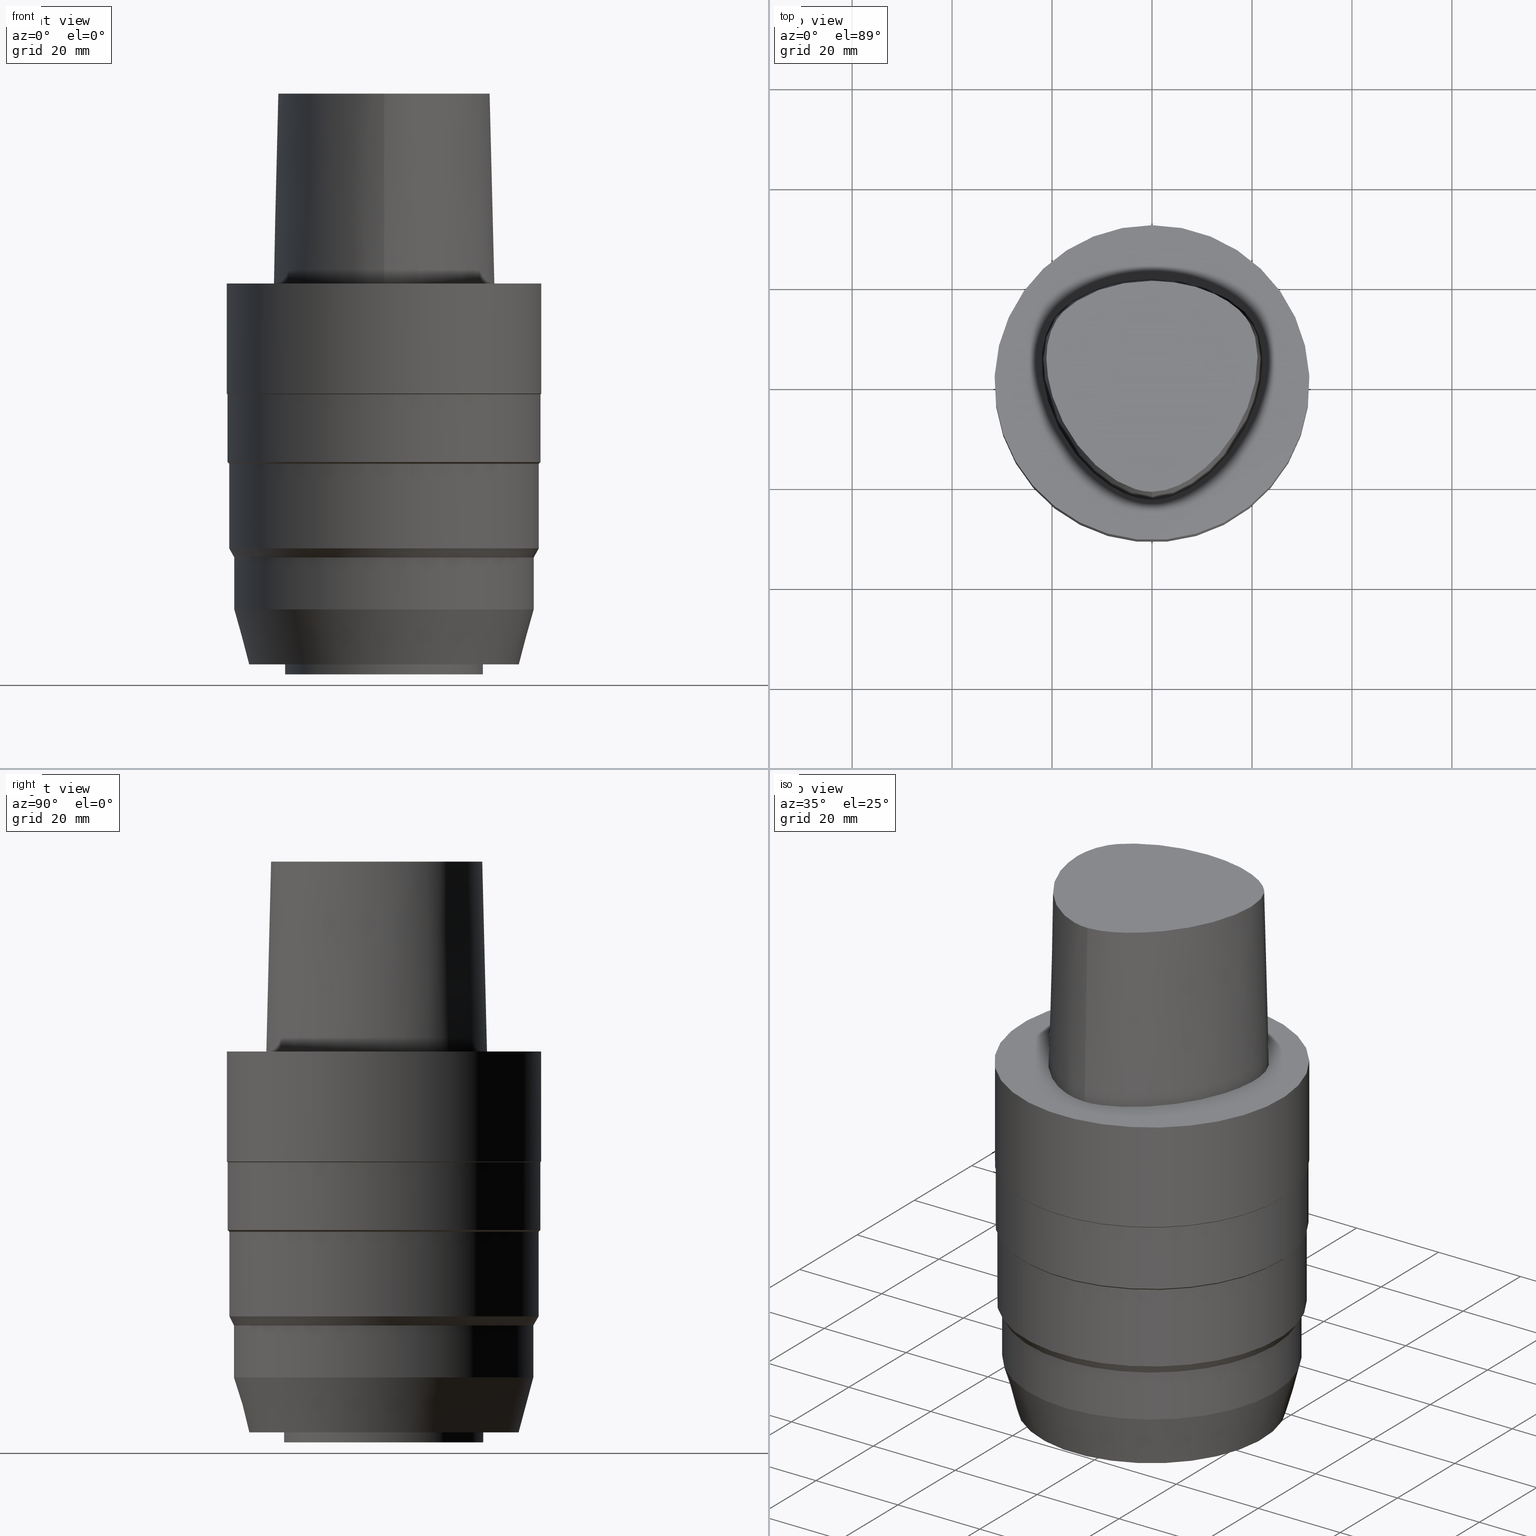
[diagram: canonical four-view strip — front | top / right | iso, engineering-drawing reading convention]
A machine part, canonical four-view strip (front | top / right | iso — engineering-drawing reading convention). The complete STEP part file that produces these views, byte-faithful:
ISO-10303-21;
HEADER;
FILE_DESCRIPTION((''),'1');
FILE_NAME('V:/90_\X2\53D65F9730C730FC30BF\X0\/00_\X2\6DE18DEF30C730FC30BF\X0\/ALL/CAPTO-BKUS\X2\52A05DE556F3\X0\_201801/C6-MEGADS-A/C6-MEGA1.000DS-3A.stp','2018-02-01T09:11:41',(''),(''),'Spatial Interop R21 SP3','Kubotek KeyCreator 2011 V10.0.2 (22737)',' ');
FILE_SCHEMA(('automotive_design'));
ENDSEC;
DATA;
#1=MECHANICAL_DESIGN_GEOMETRIC_PRESENTATION_REPRESENTATION(' ',(#10,#11,#12,#13,#14,#15,#16,#17,#18,#19,#20,#21,#22,#23,#24,#25,#26,#27,#28,#29,#30,#31,#32,#33,#34,#35,#36,#37,#38,#39,#40,#41,#42,#43,#44,#45),#6);
#2=PRODUCT_DEFINITION_CONTEXT('',#46,'design');
#3=APPLICATION_PROTOCOL_DEFINITION('INTERNATIONAL STANDARD','automotive_design',1994,#46);
#4=PRODUCT_CATEGORY_RELATIONSHIP('NONE','NONE',#47,#48);
#5=SHAPE_DEFINITION_REPRESENTATION(#49,#50);
#6= (GEOMETRIC_REPRESENTATION_CONTEXT(3)GLOBAL_UNCERTAINTY_ASSIGNED_CONTEXT((#53))GLOBAL_UNIT_ASSIGNED_CONTEXT((#55,#56,#57))REPRESENTATION_CONTEXT('NONE','WORKSPACE'));
#10=STYLED_ITEM('',(#59),#60);
#11=STYLED_ITEM('',(#61,#62),#63);
#12=STYLED_ITEM('',(#64),#65);
#13=STYLED_ITEM('',(#66,#67),#68);
#14=STYLED_ITEM('',(#69,#70),#71);
#15=STYLED_ITEM('',(#72,#73),#74);
#16=STYLED_ITEM('',(#75,#76),#77);
#17=STYLED_ITEM('',(#78,#79),#80);
#18=STYLED_ITEM('',(#81),#82);
#19=STYLED_ITEM('',(#83),#84);
#20=STYLED_ITEM('',(#85),#86);
#21=STYLED_ITEM('',(#87,#88),#89);
#22=STYLED_ITEM('',(#90),#91);
#23=STYLED_ITEM('',(#92),#93);
#24=STYLED_ITEM('',(#94,#95),#96);
#25=STYLED_ITEM('',(#97),#98);
#26=STYLED_ITEM('',(#99),#100);
#27=STYLED_ITEM('',(#101),#102);
#28=STYLED_ITEM('',(#103,#104),#105);
#29=STYLED_ITEM('',(#106,#107),#108);
#30=STYLED_ITEM('',(#109),#110);
#31=STYLED_ITEM('',(#111,#112),#113);
#32=STYLED_ITEM('',(#114,#115),#116);
#33=STYLED_ITEM('',(#117),#118);
#34=STYLED_ITEM('',(#119),#120);
#35=STYLED_ITEM('',(#121),#122);
#36=STYLED_ITEM('',(#123,#124),#125);
#37=STYLED_ITEM('',(#126,#127),#128);
#38=STYLED_ITEM('',(#129),#130);
#39=STYLED_ITEM('',(#131,#132),#133);
#40=STYLED_ITEM('',(#134),#135);
#41=STYLED_ITEM('',(#136),#137);
#42=STYLED_ITEM('',(#138,#139),#140);
#43=STYLED_ITEM('',(#141,#142),#143);
#44=STYLED_ITEM('',(#144),#145);
#45=STYLED_ITEM('',(#146),#147);
#46=APPLICATION_CONTEXT(' ');
#47=PRODUCT_CATEGORY('part','NONE');
#48=PRODUCT_RELATED_PRODUCT_CATEGORY('detail',' ',(#148));
#49=PRODUCT_DEFINITION_SHAPE('NONE','NONE',#149);
#50=ADVANCED_BREP_SHAPE_REPRESENTATION('Unnamed[1]',(#89,#150),#6);
#53=UNCERTAINTY_MEASURE_WITH_UNIT(LENGTH_MEASURE(1.0E-006),#55,'','');
#55= (CONVERSION_BASED_UNIT('MILLIMETRE',#153)LENGTH_UNIT()NAMED_UNIT(#156));
#56= (NAMED_UNIT(#158)PLANE_ANGLE_UNIT()SI_UNIT($,.RADIAN.));
#57= (NAMED_UNIT(#158)SOLID_ANGLE_UNIT()SI_UNIT($,.STERADIAN.));
#59=PRESENTATION_STYLE_ASSIGNMENT((#164));
#60=EDGE_CURVE('Unnamed[1]',#165,#165,#166,.T.);
#61=PRESENTATION_STYLE_ASSIGNMENT((#167));
#62=PRESENTATION_STYLE_ASSIGNMENT((#168));
#63=ADVANCED_FACE('Unnamed[1]',(#169,#170),#171,.T.);
#64=PRESENTATION_STYLE_ASSIGNMENT((#172));
#65=EDGE_CURVE('Unnamed[1]',#173,#174,#175,.T.);
#66=PRESENTATION_STYLE_ASSIGNMENT((#176));
#67=PRESENTATION_STYLE_ASSIGNMENT((#177));
#68=ADVANCED_FACE('Unnamed[1]',(#178),#179,.T.);
#69=PRESENTATION_STYLE_ASSIGNMENT((#180));
#70=PRESENTATION_STYLE_ASSIGNMENT((#181));
#71=ADVANCED_FACE('Unnamed[1]',(#182,#183),#184,.T.);
#72=PRESENTATION_STYLE_ASSIGNMENT((#185));
#73=PRESENTATION_STYLE_ASSIGNMENT((#186));
#74=ADVANCED_FACE('Unnamed[1]',(#187,#188),#189,.T.);
#75=PRESENTATION_STYLE_ASSIGNMENT((#190));
#76=PRESENTATION_STYLE_ASSIGNMENT((#191));
#77=ADVANCED_FACE('Unnamed[1]',(#192,#193),#194,.T.);
#78=PRESENTATION_STYLE_ASSIGNMENT((#195));
#79=PRESENTATION_STYLE_ASSIGNMENT((#196));
#80=ADVANCED_FACE('Unnamed[1]',(#197,#198),#199,.T.);
#81=PRESENTATION_STYLE_ASSIGNMENT((#200));
#82=EDGE_CURVE('Unnamed[1]',#173,#201,#202,.T.);
#83=PRESENTATION_STYLE_ASSIGNMENT((#203));
#84=EDGE_CURVE('Unnamed[1]',#204,#204,#205,.T.);
#85=PRESENTATION_STYLE_ASSIGNMENT((#206));
#86=EDGE_CURVE('Unnamed[1]',#207,#207,#208,.T.);
#87=PRESENTATION_STYLE_ASSIGNMENT((#209));
#88=PRESENTATION_STYLE_ASSIGNMENT((#210));
#89=MANIFOLD_SOLID_BREP('Unnamed[1]',#211);
#90=PRESENTATION_STYLE_ASSIGNMENT((#212));
#91=EDGE_CURVE('Unnamed[1]',#174,#213,#214,.T.);
#92=PRESENTATION_STYLE_ASSIGNMENT((#215));
#93=EDGE_CURVE('Unnamed[1]',#216,#216,#217,.T.);
#94=PRESENTATION_STYLE_ASSIGNMENT((#218));
#95=PRESENTATION_STYLE_ASSIGNMENT((#219));
#96=ADVANCED_FACE('Unnamed[1]',(#220),#221,.T.);
#97=PRESENTATION_STYLE_ASSIGNMENT((#222));
#98=EDGE_CURVE('Unnamed[1]',#223,#173,#224,.T.);
#99=PRESENTATION_STYLE_ASSIGNMENT((#225));
#100=EDGE_CURVE('Unnamed[1]',#226,#226,#227,.T.);
#101=PRESENTATION_STYLE_ASSIGNMENT((#228));
#102=EDGE_CURVE('Unnamed[1]',#229,#229,#230,.T.);
#103=PRESENTATION_STYLE_ASSIGNMENT((#231));
#104=PRESENTATION_STYLE_ASSIGNMENT((#232));
#105=ADVANCED_FACE('Unnamed[1]',(#233,#234),#235,.T.);
#106=PRESENTATION_STYLE_ASSIGNMENT((#236));
#107=PRESENTATION_STYLE_ASSIGNMENT((#237));
#108=ADVANCED_FACE('Unnamed[1]',(#238,#239),#240,.T.);
#109=PRESENTATION_STYLE_ASSIGNMENT((#241));
#110=EDGE_CURVE('Unnamed[1]',#242,#242,#243,.T.);
#111=PRESENTATION_STYLE_ASSIGNMENT((#244));
#112=PRESENTATION_STYLE_ASSIGNMENT((#245));
#113=ADVANCED_FACE('Unnamed[1]',(#246,#247),#248,.T.);
#114=PRESENTATION_STYLE_ASSIGNMENT((#249));
#115=PRESENTATION_STYLE_ASSIGNMENT((#250));
#116=ADVANCED_FACE('Unnamed[1]',(#251,#252),#253,.T.);
#117=PRESENTATION_STYLE_ASSIGNMENT((#254));
#118=EDGE_CURVE('Unnamed[1]',#255,#255,#256,.T.);
#119=PRESENTATION_STYLE_ASSIGNMENT((#257));
#120=EDGE_CURVE('Unnamed[1]',#201,#174,#258,.T.);
#121=PRESENTATION_STYLE_ASSIGNMENT((#259));
#122=EDGE_CURVE('Unnamed[1]',#213,#201,#260,.T.);
#123=PRESENTATION_STYLE_ASSIGNMENT((#261));
#124=PRESENTATION_STYLE_ASSIGNMENT((#262));
#125=ADVANCED_FACE('Unnamed[1]',(#263),#264,.T.);
#126=PRESENTATION_STYLE_ASSIGNMENT((#265));
#127=PRESENTATION_STYLE_ASSIGNMENT((#266));
#128=ADVANCED_FACE('Unnamed[1]',(#267,#268),#269,.T.);
#129=PRESENTATION_STYLE_ASSIGNMENT((#270));
#130=EDGE_CURVE('Unnamed[1]',#271,#271,#272,.T.);
#131=PRESENTATION_STYLE_ASSIGNMENT((#273));
#132=PRESENTATION_STYLE_ASSIGNMENT((#274));
#133=ADVANCED_FACE('Unnamed[1]',(#275,#276),#277,.T.);
#134=PRESENTATION_STYLE_ASSIGNMENT((#278));
#135=EDGE_CURVE('Unnamed[1]',#173,#223,#279,.T.);
#136=PRESENTATION_STYLE_ASSIGNMENT((#280));
#137=EDGE_CURVE('Unnamed[1]',#281,#281,#282,.T.);
#138=PRESENTATION_STYLE_ASSIGNMENT((#283));
#139=PRESENTATION_STYLE_ASSIGNMENT((#284));
#140=ADVANCED_FACE('Unnamed[1]',(#285),#286,.T.);
#141=PRESENTATION_STYLE_ASSIGNMENT((#287));
#142=PRESENTATION_STYLE_ASSIGNMENT((#288));
#143=ADVANCED_FACE('Unnamed[1]',(#289),#290,.T.);
#144=PRESENTATION_STYLE_ASSIGNMENT((#291));
#145=EDGE_CURVE('Unnamed[1]',#223,#213,#292,.T.);
#146=PRESENTATION_STYLE_ASSIGNMENT((#293));
#147=EDGE_CURVE('Unnamed[1]',#294,#294,#295,.T.);
#148=PRODUCT('Unnamed[1]','Unnamed[1]','PART-Unnamed[1]-DESC',(#296));
#149=PRODUCT_DEFINITION('NONE','NONE',#297,#2);
#150=AXIS2_PLACEMENT_3D('',#298,#299,#300);
#153=LENGTH_MEASURE_WITH_UNIT(LENGTH_MEASURE(1.0),#301);
#156=DIMENSIONAL_EXPONENTS(1.0,0.0,0.0,0.0,0.0,0.0,0.0);
#158=DIMENSIONAL_EXPONENTS(0.0,0.0,0.0,0.0,0.0,0.0,0.0);
#164=CURVE_STYLE('',#302,POSITIVE_LENGTH_MEASURE(1000.0),#303);
#165=VERTEX_POINT('',#304);
#166=CIRCLE('',#305,31.5);
#167=SURFACE_STYLE_USAGE(.BOTH.,#306);
#168=CURVE_STYLE('',#307,POSITIVE_LENGTH_MEASURE(1000.0),#308);
#169=FACE_BOUND('',#309,.T.);
#170=FACE_BOUND('',#310,.T.);
#171=CONICAL_SURFACE('',#311,28.4750000000001,0.261799387799166);
#172=CURVE_STYLE('',#312,POSITIVE_LENGTH_MEASURE(1000.0),#313);
#173=VERTEX_POINT('',#314);
#174=VERTEX_POINT('',#315);
#175=LINE('',#316,#317);
#176=SURFACE_STYLE_USAGE(.BOTH.,#318);
#177=CURVE_STYLE('',#319,POSITIVE_LENGTH_MEASURE(1000.0),#320);
#178=FACE_OUTER_BOUND('',#321,.T.);
#179=B_SPLINE_SURFACE_WITH_KNOTS('',3,3,((#322,#323,#324,#325),(#326,#327,#328,#329),(#330,#331,#332,#333),(#334,#335,#336,#337),(#338,#339,#340,#341),(#342,#343,#344,#345),(#346,#347,#348,#349),(#350,#351,#352,#353),(#354,#355,#356,#357),(#358,#359,#360,#361),(#362,#363,#364,#365),(#366,#367,#368,#369),(#370,#371,#372,#373),(#374,#375,#376,#377),(#378,#379,#380,#381),(#382,#383,#384,#385),(#386,#387,#388,#389),(#390,#391,#392,#393)),.UNSPECIFIED.,.F.,.F.,.F.,(4,1,1,1,1,1,1,1,1,2,1,1,1,1,4),(4,4),(-6.6151339308743,-6.20168806019465,-5.78824218951501,-5.37479631883537,-4.96135044815572,-4.13445870679644,-3.30756696543715,-2.89412109475751,-2.48067522407786,-2.06722935339822,-1.65378348271857,-1.24033761203893,-0.826891741359287,-0.413445870679644,0.0),(-3.8,0.0),.UNSPECIFIED.);
#180=SURFACE_STYLE_USAGE(.BOTH.,#394);
#181=CURVE_STYLE('',#395,POSITIVE_LENGTH_MEASURE(1000.0),#396);
#182=FACE_BOUND('',#397,.T.);
#183=FACE_BOUND('',#398,.T.);
#184=CONICAL_SURFACE('',#399,30.475,0.523598775596922);
#185=SURFACE_STYLE_USAGE(.BOTH.,#400);
#186=CURVE_STYLE('',#401,POSITIVE_LENGTH_MEASURE(1000.0),#402);
#187=FACE_BOUND('',#403,.T.);
#188=FACE_BOUND('',#404,.T.);
#189=CYLINDRICAL_SURFACE('',#405,31.5);
#190=SURFACE_STYLE_USAGE(.BOTH.,#406);
#191=CURVE_STYLE('',#407,POSITIVE_LENGTH_MEASURE(1000.0),#408);
#192=FACE_BOUND('',#409,.T.);
#193=FACE_OUTER_BOUND('',#410,.T.);
#194=PLANE('',#411);
#195=SURFACE_STYLE_USAGE(.BOTH.,#412);
#196=CURVE_STYLE('',#413,POSITIVE_LENGTH_MEASURE(1000.0),#414);
#197=FACE_BOUND('',#415,.T.);
#198=FACE_BOUND('',#416,.T.);
#199=CYLINDRICAL_SURFACE('',#417,19.9200000000011);
#200=CURVE_STYLE('',#418,POSITIVE_LENGTH_MEASURE(1000.0),#419);
#201=VERTEX_POINT('',#420);
#202=LINE('',#421,#422);
#203=CURVE_STYLE('',#423,POSITIVE_LENGTH_MEASURE(1000.0),#424);
#204=VERTEX_POINT('',#425);
#205=CIRCLE('',#426,31.5);
#206=CURVE_STYLE('',#427,POSITIVE_LENGTH_MEASURE(1000.0),#428);
#207=VERTEX_POINT('',#429);
#208=CIRCLE('',#430,31.0000000000001);
#209=SURFACE_STYLE_USAGE(.BOTH.,#431);
#210=CURVE_STYLE('',#432,POSITIVE_LENGTH_MEASURE(1000.0),#433);
#211=CLOSED_SHELL('',(#96,#68,#140,#143,#105,#74,#113,#116,#128,#108,#71,#133,#63,#77,#80,#125));
#212=CURVE_STYLE('',#434,POSITIVE_LENGTH_MEASURE(1000.0),#435);
#213=VERTEX_POINT('',#436);
#214=B_SPLINE_CURVE_WITH_KNOTS('',3,(#437,#438,#439,#440,#441,#442,#443,#444,#445,#446,#447,#448,#449,#450,#451,#452,#453),.UNSPECIFIED.,.F.,.F.,(4,1,1,1,1,1,1,1,1,1,1,1,1,1,4),(-13.2302678617486,-12.816821991069,-12.4033761203893,-11.9899302497097,-11.57648437903,-11.1630385083504,-10.9563155730106,-10.7495926376707,-10.3361467669911,-9.92270089631145,-9.09580915495216,-8.26891741359287,-7.44202567223358,-7.02857980155394,-6.6151339308743),.UNSPECIFIED.);
#215=CURVE_STYLE('',#454,POSITIVE_LENGTH_MEASURE(1000.0),#455);
#216=VERTEX_POINT('',#456);
#217=CIRCLE('',#457,31.3499999999998);
#218=SURFACE_STYLE_USAGE(.BOTH.,#458);
#219=CURVE_STYLE('',#459,POSITIVE_LENGTH_MEASURE(1000.0),#460);
#220=FACE_OUTER_BOUND('',#461,.T.);
#221=B_SPLINE_SURFACE_WITH_KNOTS('',3,3,((#462,#463,#464,#465),(#466,#467,#468,#469),(#470,#471,#472,#473),(#474,#475,#476,#477),(#478,#479,#480,#481),(#482,#483,#484,#485),(#486,#487,#488,#489),(#490,#491,#492,#493),(#494,#495,#496,#497),(#498,#499,#500,#501),(#502,#503,#504,#505),(#506,#507,#508,#509),(#510,#511,#512,#513),(#514,#515,#516,#517),(#518,#519,#520,#521),(#522,#523,#524,#525),(#526,#527,#528,#529)),.UNSPECIFIED.,.F.,.F.,.F.,(4,1,1,1,1,1,1,1,1,1,1,1,1,1,4),(4,4),(-13.2302678617486,-12.816821991069,-12.4033761203893,-11.9899302497097,-11.57648437903,-11.1630385083504,-10.9563155730106,-10.7495926376707,-10.3361467669911,-9.92270089631145,-9.09580915495216,-8.26891741359287,-7.44202567223358,-7.02857980155394,-6.6151339308743),(-3.8,0.0),.UNSPECIFIED.);
#222=CURVE_STYLE('',#530,POSITIVE_LENGTH_MEASURE(1000.0),#531);
#223=VERTEX_POINT('',#532);
#224=B_SPLINE_CURVE_WITH_KNOTS('',3,(#533,#534,#535,#536,#537,#538,#539,#540,#541,#542,#543,#544,#545,#546,#547,#548),.UNSPECIFIED.,.F.,.F.,(4,1,1,1,1,1,1,1,1,1,1,1,1,4),(6.61513393087476,6.99917207152274,7.48193246986995,7.96289324787093,8.45540287038584,9.10291653679981,9.67129810936083,10.1618749681153,10.6358867802489,11.1080734988593,11.6043706019633,12.09451993853,12.6985979284494,13.2302678617486),.UNSPECIFIED.);
#225=CURVE_STYLE('',#549,POSITIVE_LENGTH_MEASURE(1000.0),#550);
#226=VERTEX_POINT('',#551);
#227=CIRCLE('',#552,31.3500000000002);
#228=CURVE_STYLE('',#553,POSITIVE_LENGTH_MEASURE(1000.0),#554);
#229=VERTEX_POINT('',#555);
#230=CIRCLE('',#556,29.9499999999999);
#231=SURFACE_STYLE_USAGE(.BOTH.,#557);
#232=CURVE_STYLE('',#558,POSITIVE_LENGTH_MEASURE(1000.0),#559);
#233=FACE_BOUND('',#560,.T.);
#234=FACE_OUTER_BOUND('',#561,.T.);
#235=PLANE('',#562);
#236=SURFACE_STYLE_USAGE(.BOTH.,#563);
#237=CURVE_STYLE('',#564,POSITIVE_LENGTH_MEASURE(1000.0),#565);
#238=FACE_BOUND('',#566,.T.);
#239=FACE_BOUND('',#567,.T.);
#240=CYLINDRICAL_SURFACE('',#568,31.0);
#241=CURVE_STYLE('',#569,POSITIVE_LENGTH_MEASURE(1000.0),#570);
#242=VERTEX_POINT('',#571);
#243=CIRCLE('',#572,19.9200000000013);
#244=SURFACE_STYLE_USAGE(.BOTH.,#573);
#245=CURVE_STYLE('',#574,POSITIVE_LENGTH_MEASURE(1000.0),#575);
#246=FACE_BOUND('',#576,.T.);
#247=FACE_BOUND('',#577,.T.);
#248=CONICAL_SURFACE('',#578,31.4249999999999,0.785398163397756);
#249=SURFACE_STYLE_USAGE(.BOTH.,#579);
#250=CURVE_STYLE('',#580,POSITIVE_LENGTH_MEASURE(1000.0),#581);
#251=FACE_BOUND('',#582,.T.);
#252=FACE_BOUND('',#583,.T.);
#253=CYLINDRICAL_SURFACE('',#584,31.35);
#254=CURVE_STYLE('',#585,POSITIVE_LENGTH_MEASURE(1000.0),#586);
#255=VERTEX_POINT('',#587);
#256=CIRCLE('',#588,31.0);
#257=CURVE_STYLE('',#589,POSITIVE_LENGTH_MEASURE(1000.0),#590);
#258=CIRCLE('',#591,0.949936168436318);
#259=CURVE_STYLE('',#592,POSITIVE_LENGTH_MEASURE(1000.0),#593);
#260=B_SPLINE_CURVE_WITH_KNOTS('',3,(#594,#595,#596,#597,#598,#599,#600,#601,#602,#603,#604,#605,#606,#607,#608,#609,#610,#611),.UNSPECIFIED.,.F.,.F.,(4,1,1,1,1,1,1,1,1,2,1,1,1,1,4),(-6.6151339308743,-6.20168806019465,-5.78824218951501,-5.37479631883537,-4.96135044815572,-4.13445870679644,-3.30756696543715,-2.89412109475751,-2.48067522407786,-2.06722935339822,-1.65378348271857,-1.24033761203893,-0.826891741359287,-0.413445870679644,0.0),.UNSPECIFIED.);
#261=SURFACE_STYLE_USAGE(.BOTH.,#612);
#262=CURVE_STYLE('',#613,POSITIVE_LENGTH_MEASURE(1000.0),#614);
#263=FACE_OUTER_BOUND('',#615,.T.);
#264=PLANE('',#616);
#265=SURFACE_STYLE_USAGE(.BOTH.,#617);
#266=CURVE_STYLE('',#618,POSITIVE_LENGTH_MEASURE(1000.0),#619);
#267=FACE_BOUND('',#620,.T.);
#268=FACE_BOUND('',#621,.T.);
#269=CONICAL_SURFACE('',#622,31.1750000000001,0.785398163406234);
#270=CURVE_STYLE('',#623,POSITIVE_LENGTH_MEASURE(1000.0),#624);
#271=VERTEX_POINT('',#625);
#272=CIRCLE('',#626,29.9500000000003);
#273=SURFACE_STYLE_USAGE(.BOTH.,#627);
#274=CURVE_STYLE('',#628,POSITIVE_LENGTH_MEASURE(1000.0),#629);
#275=FACE_BOUND('',#630,.T.);
#276=FACE_BOUND('',#631,.T.);
#277=CYLINDRICAL_SURFACE('',#632,29.9500000000001);
#278=CURVE_STYLE('',#633,POSITIVE_LENGTH_MEASURE(1000.0),#634);
#279=B_SPLINE_CURVE_WITH_KNOTS('',3,(#635,#636,#637,#638,#639,#640,#641,#642,#643,#644,#645,#646,#647,#648,#649,#650),.UNSPECIFIED.,.F.,.F.,(4,1,1,1,1,1,1,1,1,1,1,1,1,4),(0.0,0.447924670568964,0.9388024242536,1.50591409090711,2.07314340012323,2.72424957442464,3.2253501842849,3.80982102049476,4.34867996267067,4.85900173381144,5.37972031856977,6.03459825488646,6.61113557741484,6.61513393087395),.UNSPECIFIED.);
#280=CURVE_STYLE('',#651,POSITIVE_LENGTH_MEASURE(1000.0),#652);
#281=VERTEX_POINT('',#653);
#282=CIRCLE('',#654,19.9200000000008);
#283=SURFACE_STYLE_USAGE(.BOTH.,#655);
#284=CURVE_STYLE('',#656,POSITIVE_LENGTH_MEASURE(1000.0),#657);
#285=FACE_OUTER_BOUND('',#658,.T.);
#286=CONICAL_SURFACE('',#659,1.0,0.0249931148600041);
#287=SURFACE_STYLE_USAGE(.BOTH.,#660);
#288=CURVE_STYLE('',#661,POSITIVE_LENGTH_MEASURE(1000.0),#662);
#289=FACE_OUTER_BOUND('',#663,.T.);
#290=PLANE('',#664);
#291=CURVE_STYLE('',#665,POSITIVE_LENGTH_MEASURE(1000.0),#666);
#292=LINE('',#667,#668);
#293=CURVE_STYLE('',#669,POSITIVE_LENGTH_MEASURE(1000.0),#670);
#294=VERTEX_POINT('',#671);
#295=CIRCLE('',#672,26.9999999999999);
#296=PRODUCT_CONTEXT('',#46,'mechanical');
#297=PRODUCT_DEFINITION_FORMATION_WITH_SPECIFIED_SOURCE(' ','NONE',#148,.NOT_KNOWN.);
#298=CARTESIAN_POINT('',(0.0,0.0,0.0));
#299=DIRECTION('',(0.0,0.0,1.0));
#300=DIRECTION('',(1.0,0.0,0.0));
#301= (NAMED_UNIT(#156)LENGTH_UNIT()SI_UNIT(.MILLI.,.METRE.));
#302=DRAUGHTING_PRE_DEFINED_CURVE_FONT('continuous');
#303=COLOUR_RGB('',0.0,1.0,0.0);
#304=CARTESIAN_POINT('',(-3.88267476788467E-031,31.5,3.85763741731416E-015));
#305=AXIS2_PLACEMENT_3D('',#674,#675,#676);
#306=SURFACE_SIDE_STYLE('',(#677));
#307=DRAUGHTING_PRE_DEFINED_CURVE_FONT('continuous');
#308=COLOUR_RGB('',0.0,1.0,0.0);
#309=EDGE_LOOP('',(#678));
#310=EDGE_LOOP('',(#679));
#311=AXIS2_PLACEMENT_3D('',#680,#681,#682);
#312=DRAUGHTING_PRE_DEFINED_CURVE_FONT('continuous');
#313=COLOUR_RGB('',0.0,1.0,0.0);
#314=CARTESIAN_POINT('',(-0.001218547003662,19.7276821925089,38.0));
#315=CARTESIAN_POINT('',(0.044682985379347,20.6765087343109,1.61778115328528E-031));
#316=CARTESIAN_POINT('',(-0.001218547003662,19.7276821925089,38.0));
#317=VECTOR('',#683,38.0118715503078);
#318=SURFACE_SIDE_STYLE('',(#684));
#319=DRAUGHTING_PRE_DEFINED_CURVE_FONT('continuous');
#320=COLOUR_RGB('',0.0,1.0,0.0);
#321=EDGE_LOOP('',(#685,#686,#687,#688));
#322=CARTESIAN_POINT('',(0.038736923393866,-22.5191997536361,38.0));
#323=CARTESIAN_POINT('',(0.04035580478973,-22.8358410047159,25.3333333333066));
#324=CARTESIAN_POINT('',(0.041974686185626,-23.1524822558133,12.6666666666934));
#325=CARTESIAN_POINT('',(0.04359356758149,-23.4691235068931,7.78075697532443E-032));
#326=CARTESIAN_POINT('',(-1.33786123484754,-22.5261650259856,38.0));
#327=CARTESIAN_POINT('',(-1.38240731367927,-22.8430399310626,25.3333333333066));
#328=CARTESIAN_POINT('',(-1.42695339249092,-23.1599147815484,12.6666666666934));
#329=CARTESIAN_POINT('',(-1.4714994713963,-23.4767895315797,2.46519032881566E-032));
#330=CARTESIAN_POINT('',(-4.08909358431842,-21.9268839879558,38.0));
#331=CARTESIAN_POINT('',(-4.20580731135515,-22.2249725500078,25.3333333333066));
#332=CARTESIAN_POINT('',(-4.32252104640446,-22.5230611651922,12.6666666666934));
#333=CARTESIAN_POINT('',(-4.43923476371401,-22.821149804767,-4.93038065763132E-032));
#334=CARTESIAN_POINT('',(-7.8333083619947,-19.9973514861616,38.0));
#335=CARTESIAN_POINT('',(-8.00568301809614,-20.2649260859405,25.3333333333066));
#336=CARTESIAN_POINT('',(-8.1780576640789,-20.532500564315,12.6666666666934));
#337=CARTESIAN_POINT('',(-8.35043230079961,-20.8000751253325,-9.86076131526265E-032));
#338=CARTESIAN_POINT('',(-11.1035071147626,-17.450554957873,38.0));
#339=CARTESIAN_POINT('',(-11.3173048160562,-17.6855739222454,25.3333333333066));
#340=CARTESIAN_POINT('',(-11.5311025116181,-17.9205928617968,12.6666666666934));
#341=CARTESIAN_POINT('',(-11.744900222602,-18.1556117874078,-1.97215226305253E-031));
#342=CARTESIAN_POINT('',(-14.9379535189057,-13.461132049697,38.0));
#343=CARTESIAN_POINT('',(-15.191622410671,-13.6542981711372,25.3333333333066));
#344=CARTESIAN_POINT('',(-15.4452913389853,-13.8474645327131,12.6666666666934));
#345=CARTESIAN_POINT('',(-15.6989602501314,-14.0406306929147,-1.97215226305253E-031));
#346=CARTESIAN_POINT('',(-18.6681263017223,-7.59391757463204,38.0));
#347=CARTESIAN_POINT('',(-18.9571800800711,-7.73136168081928,25.3333333333066));
#348=CARTESIAN_POINT('',(-19.2462337287194,-7.86880572399774,12.6666666666934));
#349=CARTESIAN_POINT('',(-19.5352875070682,-8.00624990770787,1.97215226305253E-031));
#350=CARTESIAN_POINT('',(-20.7857899858339,-0.952862819790525,38.0));
#351=CARTESIAN_POINT('',(-21.0973808305434,-1.02218087467418,25.3333333333066));
#352=CARTESIAN_POINT('',(-21.408971677436,-1.09149899580772,12.6666666666934));
#353=CARTESIAN_POINT('',(-21.7205626190491,-1.16081708945282,0.0));
#354=CARTESIAN_POINT('',(-21.2911760556836,4.5469215763113,38.0));
#355=CARTESIAN_POINT('',(-21.610337904926,4.54783292082248,25.3333333333066));
#356=CARTESIAN_POINT('',(-21.9294998290918,4.54874426225691,12.6666666666934));
#357=CARTESIAN_POINT('',(-22.2486616783342,4.54965558738736,0.0));
#358=CARTESIAN_POINT('',(-20.7345309521958,8.74909381391006,38.0));
#359=CARTESIAN_POINT('',(-21.0445680426217,8.83349432450556,25.3333333333066));
#360=CARTESIAN_POINT('',(-21.3546050933631,8.91789488065068,12.6666666666934));
#361=CARTESIAN_POINT('',(-21.6646421256468,9.00229539124618,0.0));
#362=CARTESIAN_POINT('',(-19.5531512296439,11.3174844040833,38.0));
#363=CARTESIAN_POINT('',(-19.8336219699984,11.4710077674213,25.3333333333066));
#364=CARTESIAN_POINT('',(-20.1140927680763,11.6245311337623,12.6666666666934));
#365=CARTESIAN_POINT('',(-20.3945635471922,11.7780544971003,0.0));
#366=CARTESIAN_POINT('',(-17.9100913688793,13.524027510437,38.0));
#367=CARTESIAN_POINT('',(-18.1375785458768,13.7487051053655,25.3333333333066));
#368=CARTESIAN_POINT('',(-18.365065665211,13.9733826973296,12.6666666666934));
#369=CARTESIAN_POINT('',(-18.5925528034471,14.1980602922581,0.0));
#370=CARTESIAN_POINT('',(-15.7996349656398,15.3762170634413,38.0));
#371=CARTESIAN_POINT('',(-15.9739761051783,15.6434029846179,25.3333333333066));
#372=CARTESIAN_POINT('',(-16.1483172726872,15.9105889315134,12.6666666666934));
#373=CARTESIAN_POINT('',(-16.3226584122258,16.1777748720707,0.0));
#374=CARTESIAN_POINT('',(-12.1175640002064,17.3825162484012,38.0));
#375=CARTESIAN_POINT('',(-12.2475895903055,17.6724842099619,25.3333333333066));
#376=CARTESIAN_POINT('',(-12.3776152070492,17.9624521925696,12.6666666666934));
#377=CARTESIAN_POINT('',(-12.5076407874579,18.2524201541303,9.86076131526265E-032));
#378=CARTESIAN_POINT('',(-8.21761151654222,18.7588585989994,38.0));
#379=CARTESIAN_POINT('',(-8.30099497910627,19.0656105427881,25.3333333333066));
#380=CARTESIAN_POINT('',(-8.38437843913309,19.3723624535439,12.6666666666934));
#381=CARTESIAN_POINT('',(-8.46776192107786,19.679114377952,9.86076131526265E-032));
#382=CARTESIAN_POINT('',(-4.13466093881225,19.5396850837055,38.0));
#383=CARTESIAN_POINT('',(-4.16658562115465,19.8557172636973,25.3333333333066));
#384=CARTESIAN_POINT('',(-4.19851029939059,20.1717494367229,12.6666666666934));
#385=CARTESIAN_POINT('',(-4.23043497193604,20.487781597334,1.97215226305253E-031));
#386=CARTESIAN_POINT('',(-1.37917220403684,19.6638560588908,38.0));
#387=CARTESIAN_POINT('',(-1.39382511685176,19.98016223565,25.3333333333066));
#388=CARTESIAN_POINT('',(-1.40847802945569,20.296468399885,12.6666666666934));
#389=CARTESIAN_POINT('',(-1.42313094248379,20.6127745766442,1.10933564796705E-031));
#390=CARTESIAN_POINT('',(-0.001218547003662,19.7276821925089,38.0));
#391=CARTESIAN_POINT('',(-0.015869696232855,20.043988446791,25.3333333333066));
#392=CARTESIAN_POINT('',(-0.030520845462092,20.3602947010464,12.6666666666934));
#393=CARTESIAN_POINT('',(-0.045171994691285,20.6766009553285,1.6755590516169E-031));
#394=SURFACE_SIDE_STYLE('',(#689));
#395=DRAUGHTING_PRE_DEFINED_CURVE_FONT('continuous');
#396=COLOUR_RGB('',0.0,1.0,0.0);
#397=EDGE_LOOP('',(#690));
#398=EDGE_LOOP('',(#691));
#399=AXIS2_PLACEMENT_3D('',#692,#693,#694);
#400=SURFACE_SIDE_STYLE('',(#695));
#401=DRAUGHTING_PRE_DEFINED_CURVE_FONT('continuous');
#402=COLOUR_RGB('',0.0,1.0,0.0);
#403=EDGE_LOOP('',(#696));
#404=EDGE_LOOP('',(#697));
#405=AXIS2_PLACEMENT_3D('',#698,#699,#700);
#406=SURFACE_SIDE_STYLE('',(#701));
#407=DRAUGHTING_PRE_DEFINED_CURVE_FONT('continuous');
#408=COLOUR_RGB('',0.0,1.0,0.0);
#409=EDGE_LOOP('',(#702));
#410=EDGE_LOOP('',(#703));
#411=AXIS2_PLACEMENT_3D('',#704,#705,#706);
#412=SURFACE_SIDE_STYLE('',(#707));
#413=DRAUGHTING_PRE_DEFINED_CURVE_FONT('continuous');
#414=COLOUR_RGB('',0.0,1.0,0.0);
#415=EDGE_LOOP('',(#708));
#416=EDGE_LOOP('',(#709));
#417=AXIS2_PLACEMENT_3D('',#710,#711,#712);
#418=DRAUGHTING_PRE_DEFINED_CURVE_FONT('continuous');
#419=COLOUR_RGB('',0.0,1.0,0.0);
#420=CARTESIAN_POINT('',(-0.045171994691285,20.6766009553285,1.6755590516169E-031));
#421=CARTESIAN_POINT('',(-0.001218547003662,19.7276821925089,38.0));
#422=VECTOR('',#713,38.0118715498723);
#423=DRAUGHTING_PRE_DEFINED_CURVE_FONT('continuous');
#424=COLOUR_RGB('',0.0,1.0,0.0);
#425=CARTESIAN_POINT('',(1.3471114790621E-015,31.5,-22.0000000000002));
#426=AXIS2_PLACEMENT_3D('',#714,#715,#716);
#427=DRAUGHTING_PRE_DEFINED_CURVE_FONT('continuous');
#428=COLOUR_RGB('',0.0,1.0,0.0);
#429=CARTESIAN_POINT('',(2.20742585546273E-015,31.0000000000001,-36.0499999999938));
#430=AXIS2_PLACEMENT_3D('',#717,#718,#719);
#431=SURFACE_SIDE_STYLE('',(#720));
#432=DRAUGHTING_PRE_DEFINED_CURVE_FONT('continuous');
#433=COLOUR_RGB('',0.0,1.0,0.0);
#434=DRAUGHTING_PRE_DEFINED_CURVE_FONT('continuous');
#435=COLOUR_RGB('',0.0,1.0,0.0);
#436=CARTESIAN_POINT('',(0.04359356758149,-23.4691235068931,7.78075697532443E-032));
#437=CARTESIAN_POINT('',(0.044682985379347,20.6765087343109,1.61778115328528E-031));
#438=CARTESIAN_POINT('',(1.42379272427753,20.6097915814392,8.62816615085482E-032));
#439=CARTESIAN_POINT('',(4.2230955003445,20.4837538303966,1.4791141972894E-031));
#440=CARTESIAN_POINT('',(8.47220762821777,19.6890432607088,9.86076131526265E-032));
#441=CARTESIAN_POINT('',(12.5141247708253,18.2434968480404,0.0));
#442=CARTESIAN_POINT('',(16.3038624872874,16.1734192182143,1.97215226305253E-031));
#443=CARTESIAN_POINT('',(19.1446913988473,13.7036723639434,-1.97215226305253E-031));
#444=CARTESIAN_POINT('',(20.7319894342149,11.1014620996188,0.0));
#445=CARTESIAN_POINT('',(21.7831756505763,8.28099229708081,-1.97215226305253E-031));
#446=CARTESIAN_POINT('',(22.2258240701438,4.60865440596506,0.0));
#447=CARTESIAN_POINT('',(21.7436130080666,-1.11326526354485,0.0));
#448=CARTESIAN_POINT('',(19.5519487660502,-7.95432366164584,0.0));
#449=CARTESIAN_POINT('',(14.9574167123838,-15.2089785567293,0.0));
#450=CARTESIAN_POINT('',(9.66840283021945,-20.0827414369705,-9.86076131526265E-032));
#451=CARTESIAN_POINT('',(4.51628650521788,-22.7946374572188,-9.86076131526265E-032));
#452=CARTESIAN_POINT('',(1.55867251738073,-23.4612972770043,-1.23259516440783E-032));
#453=CARTESIAN_POINT('',(0.04359356758149,-23.4691235068931,7.78075697532443E-032));
#454=DRAUGHTING_PRE_DEFINED_CURVE_FONT('continuous');
#455=COLOUR_RGB('',0.0,1.0,0.0);
#456=CARTESIAN_POINT('',(1.35629633005572E-015,31.3499999999998,-22.1500000000004));
#457=AXIS2_PLACEMENT_3D('',#721,#722,#723);
#458=SURFACE_SIDE_STYLE('',(#724));
#459=DRAUGHTING_PRE_DEFINED_CURVE_FONT('continuous');
#460=COLOUR_RGB('',0.0,1.0,0.0);
#461=EDGE_LOOP('',(#725,#726,#727,#728));
#462=CARTESIAN_POINT('',(-0.001218367817519,19.7276822012873,38.0));
#463=CARTESIAN_POINT('',(0.014082083248157,20.0439577123075,25.3333333333066));
#464=CARTESIAN_POINT('',(0.029382534313671,20.3602332232908,12.6666666666934));
#465=CARTESIAN_POINT('',(0.044682985379347,20.6765087343109,1.61778115328528E-031));
#466=CARTESIAN_POINT('',(1.37788651195108,19.6609652834875,38.0));
#467=CARTESIAN_POINT('',(1.3931885827258,19.9772407169847,25.3333333333066));
#468=CARTESIAN_POINT('',(1.40849065356095,20.2935162254648,12.6666666666934));
#469=CARTESIAN_POINT('',(1.42379272427753,20.6097915814392,8.62816615085482E-032));
#470=CARTESIAN_POINT('',(4.135446440878,19.5347778787784,38.0));
#471=CARTESIAN_POINT('',(4.16466278851883,19.8511031866125,25.3333333333066));
#472=CARTESIAN_POINT('',(4.1938791526746,20.1674284644204,12.6666666666934));
#473=CARTESIAN_POINT('',(4.2230955003445,20.4837538303966,1.4791141972894E-031));
#474=CARTESIAN_POINT('',(8.213607363795,18.7706026638736,38.0));
#475=CARTESIAN_POINT('',(8.29980745008421,19.0767495109635,25.3333333333066));
#476=CARTESIAN_POINT('',(8.38600751285747,19.3828964329996,12.6666666666934));
#477=CARTESIAN_POINT('',(8.47220762821777,19.6890432607088,9.86076131526265E-032));
#478=CARTESIAN_POINT('',(12.1316338645671,17.3698624840857,38.0));
#479=CARTESIAN_POINT('',(12.2591308270381,17.6610739397708,25.3333333333066));
#480=CARTESIAN_POINT('',(12.3866278083543,17.9522853923553,12.6666666666934));
#481=CARTESIAN_POINT('',(12.5141247708253,18.2434968480404,0.0));
#482=CARTESIAN_POINT('',(15.7706546153679,15.3789501349612,38.0));
#483=CARTESIAN_POINT('',(15.9483905900895,15.6437731794811,25.3333333333066));
#484=CARTESIAN_POINT('',(16.1261265513272,15.9085961736944,12.6666666666934));
#485=CARTESIAN_POINT('',(16.3038624872874,16.1734192182143,1.97215226305253E-031));
#486=CARTESIAN_POINT('',(18.4265894256284,13.0570022172893,38.0));
#487=CARTESIAN_POINT('',(18.6659567517146,13.2725589420689,25.3333333333066));
#488=CARTESIAN_POINT('',(18.9053240921419,13.4881156488541,12.6666666666934));
#489=CARTESIAN_POINT('',(19.1446913988473,13.7036723639434,-1.97215226305253E-031));
#490=CARTESIAN_POINT('',(19.8679958653038,10.6923771981998,38.0));
#491=CARTESIAN_POINT('',(20.1559937048299,10.8287388264873,25.3333333333066));
#492=CARTESIAN_POINT('',(20.4439915656177,10.965100461641,12.6666666666934));
#493=CARTESIAN_POINT('',(20.7319894342149,11.1014620996188,0.0));
#494=CARTESIAN_POINT('',(20.8470867582337,8.07149548576131,38.0));
#495=CARTESIAN_POINT('',(21.1591164072431,8.14132775555392,25.3333333333066));
#496=CARTESIAN_POINT('',(21.4711459821861,8.21116003697855,12.6666666666934));
#497=CARTESIAN_POINT('',(21.7831756505763,8.28099229708081,-1.97215226305253E-031));
#498=CARTESIAN_POINT('',(21.2693244256982,4.61157245650171,38.0));
#499=CARTESIAN_POINT('',(21.5881576801997,4.6105997689982,25.3333333333066));
#500=CARTESIAN_POINT('',(21.9069908544037,4.60962709346857,12.6666666666934));
#501=CARTESIAN_POINT('',(22.2258240701438,4.60865440596506,0.0));
#502=CARTESIAN_POINT('',(20.8071610855575,-0.912828649855193,38.0));
#503=CARTESIAN_POINT('',(21.119311671178,-0.979640884839481,25.3333333333066));
#504=CARTESIAN_POINT('',(21.4314624224461,-1.04645306732201,12.6666666666934));
#505=CARTESIAN_POINT('',(21.7436130080666,-1.11326526354485,0.0));
#506=CARTESIAN_POINT('',(18.6841935581315,-7.54428794252837,38.0));
#507=CARTESIAN_POINT('',(18.9734452551861,-7.6809665891091,25.3333333333066));
#508=CARTESIAN_POINT('',(19.2626970689956,-7.81764505382656,12.6666666666934));
#509=CARTESIAN_POINT('',(19.5519487660502,-7.95432366164584,0.0));
#510=CARTESIAN_POINT('',(14.2175552814,-14.5971504342323,38.0));
#511=CARTESIAN_POINT('',(14.4641757465198,-14.8010930946929,25.3333333333066));
#512=CARTESIAN_POINT('',(14.710796247264,-15.0050359737917,12.6666666666934));
#513=CARTESIAN_POINT('',(14.9574167123838,-15.2089785567293,0.0));
#514=CARTESIAN_POINT('',(9.0844808732933,-19.3179298129689,38.0));
#515=CARTESIAN_POINT('',(9.27912152349017,-19.572866915557,25.3333333333066));
#516=CARTESIAN_POINT('',(9.47376218971294,-19.827804295621,12.6666666666934));
#517=CARTESIAN_POINT('',(9.66840283021945,-20.0827414369705,-9.86076131526265E-032));
#518=CARTESIAN_POINT('',(4.17112919194182,-21.8987568152736,38.0));
#519=CARTESIAN_POINT('',(4.28618163483998,-22.1973837173649,25.3333333333066));
#520=CARTESIAN_POINT('',(4.40123406239433,-22.4960105163661,12.6666666666934));
#521=CARTESIAN_POINT('',(4.51628650521788,-22.7946374572188,-9.86076131526265E-032));
#522=CARTESIAN_POINT('',(1.41533654381097,-22.5120888467812,38.0));
#523=CARTESIAN_POINT('',(1.46311520162011,-22.8284916374445,25.3333333333066));
#524=CARTESIAN_POINT('',(1.51089385942236,-23.144894486341,12.6666666666934));
#525=CARTESIAN_POINT('',(1.55867251738073,-23.4612972770043,-1.23259516440783E-032));
#526=CARTESIAN_POINT('',(0.038736923393866,-22.5191997536361,38.0));
#527=CARTESIAN_POINT('',(0.04035580478973,-22.8358410047159,25.3333333333066));
#528=CARTESIAN_POINT('',(0.041974686185626,-23.1524822558133,12.6666666666934));
#529=CARTESIAN_POINT('',(0.04359356758149,-23.4691235068931,7.78075697532443E-032));
#530=DRAUGHTING_PRE_DEFINED_CURVE_FONT('continuous');
#531=COLOUR_RGB('',0.0,1.0,0.0);
#532=CARTESIAN_POINT('',(0.038736923393866,-22.5191997536361,38.0));
#533=CARTESIAN_POINT('',(0.038736923394311,-22.519199753636,38.0));
#534=CARTESIAN_POINT('',(1.31742058183662,-22.512662269405,38.0));
#535=CARTESIAN_POINT('',(4.2093773447498,-21.9116226439989,38.0));
#536=CARTESIAN_POINT('',(8.20895504542113,-19.7798683845067,38.0));
#537=CARTESIAN_POINT('',(11.9784633234593,-16.681663904162,38.0));
#538=CARTESIAN_POINT('',(15.5308821579362,-12.5807487594113,38.0));
#539=CARTESIAN_POINT('',(18.4566248438667,-7.64932246015528,38.0));
#540=CARTESIAN_POINT('',(20.4036090752029,-2.27012499825289,38.0));
#541=CARTESIAN_POINT('',(21.2357187429189,2.79891401173156,38.0));
#542=CARTESIAN_POINT('',(21.0811206267748,7.62543090736657,38.0));
#543=CARTESIAN_POINT('',(19.3383577336563,12.2772250726194,38.0));
#544=CARTESIAN_POINT('',(15.5796322014404,15.5799672120682,38.0));
#545=CARTESIAN_POINT('',(10.8392956074438,17.9834601687347,38.0));
#546=CARTESIAN_POINT('',(5.56068045850571,19.4586143858472,38.0));
#547=CARTESIAN_POINT('',(1.77223893711014,19.6418877095654,38.0));
#548=CARTESIAN_POINT('',(-0.001218367817519,19.7276822012873,38.0));
#549=DRAUGHTING_PRE_DEFINED_CURVE_FONT('continuous');
#550=COLOUR_RGB('',0.0,1.0,0.0);
#551=CARTESIAN_POINT('',(2.18599453647802E-015,31.3500000000002,-35.6999999999998));
#552=AXIS2_PLACEMENT_3D('',#729,#730,#731);
#553=DRAUGHTING_PRE_DEFINED_CURVE_FONT('continuous');
#554=COLOUR_RGB('',0.0,1.0,0.0);
#555=CARTESIAN_POINT('',(3.35553222966382E-015,29.9499999999999,-54.8000000000012));
#556=AXIS2_PLACEMENT_3D('',#732,#733,#734);
#557=SURFACE_SIDE_STYLE('',(#735));
#558=DRAUGHTING_PRE_DEFINED_CURVE_FONT('continuous');
#559=COLOUR_RGB('',0.0,1.0,0.0);
#560=EDGE_LOOP('',(#736,#737,#738));
#561=EDGE_LOOP('',(#739));
#562=AXIS2_PLACEMENT_3D('',#740,#741,#742);
#563=SURFACE_SIDE_STYLE('',(#743));
#564=DRAUGHTING_PRE_DEFINED_CURVE_FONT('continuous');
#565=COLOUR_RGB('',0.0,1.0,0.0);
#566=EDGE_LOOP('',(#744));
#567=EDGE_LOOP('',(#745));
#568=AXIS2_PLACEMENT_3D('',#746,#747,#748);
#569=DRAUGHTING_PRE_DEFINED_CURVE_FONT('continuous');
#570=COLOUR_RGB('',0.0,1.0,0.0);
#571=CARTESIAN_POINT('',(4.66590430475139E-015,19.9200000000014,-76.1999999999996));
#572=AXIS2_PLACEMENT_3D('',#749,#750,#751);
#573=SURFACE_SIDE_STYLE('',(#752));
#574=DRAUGHTING_PRE_DEFINED_CURVE_FONT('continuous');
#575=COLOUR_RGB('',0.0,1.0,0.0);
#576=EDGE_LOOP('',(#753));
#577=EDGE_LOOP('',(#754));
#578=AXIS2_PLACEMENT_3D('',#755,#756,#757);
#579=SURFACE_SIDE_STYLE('',(#758));
#580=DRAUGHTING_PRE_DEFINED_CURVE_FONT('continuous');
#581=COLOUR_RGB('',0.0,1.0,0.0);
#582=EDGE_LOOP('',(#759));
#583=EDGE_LOOP('',(#760));
#584=AXIS2_PLACEMENT_3D('',#761,#762,#763);
#585=DRAUGHTING_PRE_DEFINED_CURVE_FONT('continuous');
#586=COLOUR_RGB('',0.0,1.0,0.0);
#587=CARTESIAN_POINT('',(3.24417182959735E-015,31.0,-52.981346652048));
#588=AXIS2_PLACEMENT_3D('',#764,#765,#766);
#589=DRAUGHTING_PRE_DEFINED_CURVE_FONT('continuous');
#590=COLOUR_RGB('',0.0,1.0,0.0);
#591=AXIS2_PLACEMENT_3D('',#767,#768,#769);
#592=DRAUGHTING_PRE_DEFINED_CURVE_FONT('continuous');
#593=COLOUR_RGB('',0.0,1.0,0.0);
#594=CARTESIAN_POINT('',(0.04359356758149,-23.4691235068931,7.78075697532443E-032));
#595=CARTESIAN_POINT('',(-1.4714994713963,-23.4767895315797,2.46519032881566E-032));
#596=CARTESIAN_POINT('',(-4.43923476371401,-22.821149804767,-4.93038065763132E-032));
#597=CARTESIAN_POINT('',(-8.35043230079961,-20.8000751253325,-9.86076131526265E-032));
#598=CARTESIAN_POINT('',(-11.744900222602,-18.1556117874078,-1.97215226305253E-031));
#599=CARTESIAN_POINT('',(-15.6989602501314,-14.0406306929147,-1.97215226305253E-031));
#600=CARTESIAN_POINT('',(-19.5352875070682,-8.00624990770787,1.97215226305253E-031));
#601=CARTESIAN_POINT('',(-21.7205626190491,-1.16081708945282,0.0));
#602=CARTESIAN_POINT('',(-22.2486616783342,4.54965558738736,0.0));
#603=CARTESIAN_POINT('',(-21.6646421256468,9.00229539124618,0.0));
#604=CARTESIAN_POINT('',(-20.3945635471922,11.7780544971003,0.0));
#605=CARTESIAN_POINT('',(-18.5925528034471,14.1980602922581,0.0));
#606=CARTESIAN_POINT('',(-16.3226584122258,16.1777748720707,0.0));
#607=CARTESIAN_POINT('',(-12.5076407874579,18.2524201541303,9.86076131526265E-032));
#608=CARTESIAN_POINT('',(-8.46776192107786,19.679114377952,9.86076131526265E-032));
#609=CARTESIAN_POINT('',(-4.23043497193604,20.487781597334,1.97215226305253E-031));
#610=CARTESIAN_POINT('',(-1.42313094248379,20.6127745766442,1.10933564796705E-031));
#611=CARTESIAN_POINT('',(-0.045171994691285,20.6766009553285,1.6755590516169E-031));
#612=SURFACE_SIDE_STYLE('',(#770));
#613=DRAUGHTING_PRE_DEFINED_CURVE_FONT('continuous');
#614=COLOUR_RGB('',0.0,1.0,0.0);
#615=EDGE_LOOP('',(#771));
#616=AXIS2_PLACEMENT_3D('',#772,#773,#774);
#617=SURFACE_SIDE_STYLE('',(#775));
#618=DRAUGHTING_PRE_DEFINED_CURVE_FONT('continuous');
#619=COLOUR_RGB('',0.0,1.0,0.0);
#620=EDGE_LOOP('',(#776));
#621=EDGE_LOOP('',(#777));
#622=AXIS2_PLACEMENT_3D('',#778,#779,#780);
#623=DRAUGHTING_PRE_DEFINED_CURVE_FONT('continuous');
#624=COLOUR_RGB('',0.0,1.0,0.0);
#625=CARTESIAN_POINT('',(3.99176380357903E-015,29.9500000000003,-65.1904501176707));
#626=AXIS2_PLACEMENT_3D('',#781,#782,#783);
#627=SURFACE_SIDE_STYLE('',(#784));
#628=DRAUGHTING_PRE_DEFINED_CURVE_FONT('continuous');
#629=COLOUR_RGB('',0.0,1.0,0.0);
#630=EDGE_LOOP('',(#785));
#631=EDGE_LOOP('',(#786));
#632=AXIS2_PLACEMENT_3D('',#787,#788,#789);
#633=DRAUGHTING_PRE_DEFINED_CURVE_FONT('continuous');
#634=COLOUR_RGB('',0.0,1.0,0.0);
#635=CARTESIAN_POINT('',(-0.001218547003662,19.7276821925089,38.0));
#636=CARTESIAN_POINT('',(-1.49408492138443,19.6585333605309,38.0));
#637=CARTESIAN_POINT('',(-4.62297391420352,19.513604770166,38.0));
#638=CARTESIAN_POINT('',(-9.56160616752212,18.4291575730197,38.0));
#639=CARTESIAN_POINT('',(-14.5427684976927,16.2697452580488,38.0));
#640=CARTESIAN_POINT('',(-19.4315563551602,12.5302108980807,38.0));
#641=CARTESIAN_POINT('',(-21.306358833612,6.76352894547076,38.0));
#642=CARTESIAN_POINT('',(-21.0724946936277,0.957075236984038,38.0));
#643=CARTESIAN_POINT('',(-19.7876470880144,-4.34628503581652,38.0));
#644=CARTESIAN_POINT('',(-17.5396999600095,-9.33314444653089,38.0));
#645=CARTESIAN_POINT('',(-14.645447733857,-13.7185760345629,38.0));
#646=CARTESIAN_POINT('',(-10.7996726536643,-17.856257282137,38.0));
#647=CARTESIAN_POINT('',(-6.00479510196376,-21.2687382067675,38.0));
#648=CARTESIAN_POINT('',(-1.90747171908525,-22.5250621415864,38.0));
#649=CARTESIAN_POINT('',(0.025424107066464,-22.5192678176378,38.0));
#650=CARTESIAN_POINT('',(0.038736923394311,-22.519199753636,38.0));
#651=DRAUGHTING_PRE_DEFINED_CURVE_FONT('continuous');
#652=COLOUR_RGB('',0.0,1.0,0.0);
#653=CARTESIAN_POINT('',(4.78836898466617E-015,19.9200000000008,-78.2000000000003));
#654=AXIS2_PLACEMENT_3D('',#790,#791,#792);
#655=SURFACE_SIDE_STYLE('',(#793));
#656=DRAUGHTING_PRE_DEFINED_CURVE_FONT('continuous');
#657=COLOUR_RGB('',0.0,1.0,0.0);
#658=EDGE_LOOP('',(#794,#795,#796));
#659=AXIS2_PLACEMENT_3D('',#797,#798,#799);
#660=SURFACE_SIDE_STYLE('',(#800));
#661=DRAUGHTING_PRE_DEFINED_CURVE_FONT('continuous');
#662=COLOUR_RGB('',0.0,1.0,0.0);
#663=EDGE_LOOP('',(#801,#802));
#664=AXIS2_PLACEMENT_3D('',#803,#804,#805);
#665=DRAUGHTING_PRE_DEFINED_CURVE_FONT('continuous');
#666=COLOUR_RGB('',0.0,1.0,0.0);
#667=CARTESIAN_POINT('',(0.038736923393866,-22.5191997536361,38.0));
#668=VECTOR('',#806,38.0118715498723);
#669=DRAUGHTING_PRE_DEFINED_CURVE_FONT('continuous');
#670=COLOUR_RGB('',0.0,1.0,0.0);
#671=CARTESIAN_POINT('',(4.66590430475139E-015,26.9999999999999,-76.1999999999996));
#672=AXIS2_PLACEMENT_3D('',#807,#808,#809);
#674=CARTESIAN_POINT('',(0.0,0.0,0.0));
#675=DIRECTION('',(6.12323399573677E-017,1.22464679914735E-016,-1.0));
#676=DIRECTION('',(-1.23259516440783E-032,1.0,1.22464679914735E-016));
#677=SURFACE_STYLE_FILL_AREA(#810);
#678=ORIENTED_EDGE('',*,*,#147,.F.);
#679=ORIENTED_EDGE('',*,*,#130,.T.);
#680=CARTESIAN_POINT('',(4.32883405416521E-015,8.65766810833042E-015,-70.6952250588351));
#681=DIRECTION('',(-6.12323399573677E-017,-1.22464679914735E-016,1.0));
#682=DIRECTION('',(-1.23259516440783E-032,1.0,1.22464679914735E-016));
#683=DIRECTION('',(0.001207557810519,0.024961321374199,-0.999687688350411));
#684=SURFACE_STYLE_FILL_AREA(#811);
#685=ORIENTED_EDGE('',*,*,#122,.F.);
#686=ORIENTED_EDGE('',*,*,#145,.F.);
#687=ORIENTED_EDGE('',*,*,#135,.F.);
#688=ORIENTED_EDGE('',*,*,#82,.T.);
#689=SURFACE_STYLE_FILL_AREA(#812);
#690=ORIENTED_EDGE('',*,*,#102,.F.);
#691=ORIENTED_EDGE('',*,*,#118,.T.);
#692=CARTESIAN_POINT('',(3.29985202963059E-015,6.59970405926117E-015,-53.8906733260246));
#693=DIRECTION('',(-6.12323399573677E-017,-1.22464679914735E-016,1.0));
#694=DIRECTION('',(-1.23259516440783E-032,1.0,1.22464679914735E-016));
#695=SURFACE_STYLE_FILL_AREA(#813);
#696=ORIENTED_EDGE('',*,*,#84,.F.);
#697=ORIENTED_EDGE('',*,*,#60,.T.);
#698=CARTESIAN_POINT('',(6.73555739531052E-016,1.3471114790621E-015,-11.0000000000001));
#699=DIRECTION('',(6.12323399573677E-017,1.22464679914735E-016,-1.0));
#700=DIRECTION('',(-1.23259516440783E-032,1.0,1.22464679914735E-016));
#701=SURFACE_STYLE_FILL_AREA(#814);
#702=ORIENTED_EDGE('',*,*,#110,.F.);
#703=ORIENTED_EDGE('',*,*,#147,.T.);
#704=CARTESIAN_POINT('',(4.66590430475139E-015,23.4600000000006,-76.1999999999996));
#705=DIRECTION('',(6.12323399573677E-017,1.22464679914735E-016,-1.0));
#706=DIRECTION('',(-1.23259516440783E-032,1.0,1.22464679914735E-016));
#707=SURFACE_STYLE_FILL_AREA(#815);
#708=ORIENTED_EDGE('',*,*,#137,.F.);
#709=ORIENTED_EDGE('',*,*,#110,.T.);
#710=CARTESIAN_POINT('',(4.72713664470878E-015,9.45427328941755E-015,-77.1999999999999));
#711=DIRECTION('',(6.12323399573677E-017,1.22464679914735E-016,-1.0));
#712=DIRECTION('',(-1.23259516440783E-032,1.0,1.22464679914735E-016));
#713=DIRECTION('',(-0.001156308434589,0.02496374748543,-0.999687688361864));
#714=CARTESIAN_POINT('',(1.3471114790621E-015,2.69422295812421E-015,-22.0000000000002));
#715=DIRECTION('',(6.12323399573677E-017,1.22464679914735E-016,-1.0));
#716=DIRECTION('',(-1.23259516440783E-032,1.0,1.22464679914735E-016));
#717=CARTESIAN_POINT('',(2.20742585546273E-015,4.41485171092545E-015,-36.0499999999938));
#718=DIRECTION('',(6.12323399573677E-017,1.22464679914735E-016,-1.0));
#719=DIRECTION('',(-1.23259516440783E-032,1.0,1.22464679914735E-016));
#720=SURFACE_STYLE_FILL_AREA(#816);
#721=CARTESIAN_POINT('',(1.35629633005572E-015,2.71259266011143E-015,-22.1500000000004));
#722=DIRECTION('',(6.12323399573677E-017,1.22464679914735E-016,-1.0));
#723=DIRECTION('',(-1.23259516440783E-032,1.0,1.22464679914735E-016));
#724=SURFACE_STYLE_FILL_AREA(#817);
#725=ORIENTED_EDGE('',*,*,#91,.F.);
#726=ORIENTED_EDGE('',*,*,#65,.F.);
#727=ORIENTED_EDGE('',*,*,#98,.F.);
#728=ORIENTED_EDGE('',*,*,#145,.T.);
#729=CARTESIAN_POINT('',(2.18599453647802E-015,4.37198907295603E-015,-35.6999999999999));
#730=DIRECTION('',(6.12323399573677E-017,1.22464679914735E-016,-1.0));
#731=DIRECTION('',(-1.23259516440783E-032,1.0,1.22464679914735E-016));
#732=CARTESIAN_POINT('',(3.35553222966382E-015,6.71106445932765E-015,-54.8000000000012));
#733=DIRECTION('',(6.12323399573677E-017,1.22464679914735E-016,-1.0));
#734=DIRECTION('',(-1.23259516440783E-032,1.0,1.22464679914735E-016));
#735=SURFACE_STYLE_FILL_AREA(#818);
#736=ORIENTED_EDGE('',*,*,#91,.T.);
#737=ORIENTED_EDGE('',*,*,#122,.T.);
#738=ORIENTED_EDGE('',*,*,#120,.T.);
#739=ORIENTED_EDGE('',*,*,#60,.F.);
#740=CARTESIAN_POINT('',(-1.94133738394233E-031,15.75,1.92881870865708E-015));
#741=DIRECTION('',(-6.12323399573677E-017,-1.22464679914735E-016,1.0));
#742=DIRECTION('',(1.23259516440783E-032,-1.0,-1.22464679914735E-016));
#743=SURFACE_STYLE_FILL_AREA(#819);
#744=ORIENTED_EDGE('',*,*,#118,.F.);
#745=ORIENTED_EDGE('',*,*,#86,.T.);
#746=CARTESIAN_POINT('',(2.72579884253004E-015,5.45159768506007E-015,-44.5156733260209));
#747=DIRECTION('',(6.12323399573677E-017,1.22464679914735E-016,-1.0));
#748=DIRECTION('',(-1.23259516440783E-032,1.0,1.22464679914735E-016));
#749=CARTESIAN_POINT('',(4.66590430475139E-015,9.33180860950278E-015,-76.1999999999996));
#750=DIRECTION('',(6.12323399573677E-017,1.22464679914735E-016,-1.0));
#751=DIRECTION('',(-1.23259516440783E-032,1.0,1.22464679914735E-016));
#752=SURFACE_STYLE_FILL_AREA(#820);
#753=ORIENTED_EDGE('',*,*,#93,.F.);
#754=ORIENTED_EDGE('',*,*,#84,.T.);
#755=CARTESIAN_POINT('',(1.35170390455891E-015,2.70340780911782E-015,-22.0750000000003));
#756=DIRECTION('',(-6.12323399573676E-017,-1.22464679914735E-016,1.0));
#757=DIRECTION('',(-1.23259516440783E-032,1.0,1.22464679914735E-016));
#758=SURFACE_STYLE_FILL_AREA(#821);
#759=ORIENTED_EDGE('',*,*,#100,.F.);
#760=ORIENTED_EDGE('',*,*,#93,.T.);
#761=CARTESIAN_POINT('',(1.77114543326687E-015,3.54229086653373E-015,-28.9250000000001));
#762=DIRECTION('',(6.12323399573677E-017,1.22464679914735E-016,-1.0));
#763=DIRECTION('',(-1.23259516440783E-032,1.0,1.22464679914735E-016));
#764=CARTESIAN_POINT('',(3.24417182959735E-015,6.48834365919469E-015,-52.981346652048));
#765=DIRECTION('',(6.12323399573676E-017,1.22464679914735E-016,-1.0));
#766=DIRECTION('',(-1.23259516440783E-032,1.0,1.22464679914735E-016));
#767=CARTESIAN_POINT('',(-0.001218547003662,19.7276821925089,1.97178046083078E-015));
#768=DIRECTION('',(6.12323399573677E-017,1.22464679914735E-016,-1.0));
#769=DIRECTION('',(-0.046269895968506,0.998928974816059,1.19500303158668E-016));
#770=SURFACE_STYLE_FILL_AREA(#822);
#771=ORIENTED_EDGE('',*,*,#137,.T.);
#772=CARTESIAN_POINT('',(4.78836898466616E-015,9.96000000000041,-78.2000000000001));
#773=DIRECTION('',(6.12323399573677E-017,-1.27186690988817E-014,-1.0));
#774=DIRECTION('',(7.73966717337224E-031,1.0,-1.27186690988817E-014));
#775=SURFACE_STYLE_FILL_AREA(#823);
#776=ORIENTED_EDGE('',*,*,#86,.F.);
#777=ORIENTED_EDGE('',*,*,#100,.T.);
#778=CARTESIAN_POINT('',(2.19671019597037E-015,4.39342039194074E-015,-35.8749999999968));
#779=DIRECTION('',(-6.12323399573677E-017,-1.22464679914735E-016,1.0));
#780=DIRECTION('',(-1.23259516440783E-032,1.0,1.22464679914735E-016));
#781=CARTESIAN_POINT('',(3.99176380357903E-015,7.98352760715806E-015,-65.1904501176707));
#782=DIRECTION('',(6.12323399573677E-017,1.22464679914735E-016,-1.0));
#783=DIRECTION('',(-1.23259516440783E-032,1.0,1.22464679914735E-016));
#784=SURFACE_STYLE_FILL_AREA(#824);
#785=ORIENTED_EDGE('',*,*,#130,.F.);
#786=ORIENTED_EDGE('',*,*,#102,.T.);
#787=CARTESIAN_POINT('',(3.67364801662143E-015,7.34729603324286E-015,-59.995225058836));
#788=DIRECTION('',(6.12323399573677E-017,1.22464679914735E-016,-1.0));
#789=DIRECTION('',(-1.23259516440783E-032,1.0,1.22464679914735E-016));
#790=CARTESIAN_POINT('',(4.78836898466617E-015,9.57673796933233E-015,-78.2000000000003));
#791=DIRECTION('',(6.12323399573677E-017,1.22464679914735E-016,-1.0));
#792=DIRECTION('',(-1.23259516440783E-032,1.0,1.22464679914735E-016));
#793=SURFACE_STYLE_FILL_AREA(#825);
#794=ORIENTED_EDGE('',*,*,#120,.F.);
#795=ORIENTED_EDGE('',*,*,#82,.F.);
#796=ORIENTED_EDGE('',*,*,#65,.T.);
#797=CARTESIAN_POINT('',(-0.001218547003662,19.7276821925089,-2.00268782779425));
#798=DIRECTION('',(2.1678647975542E-051,-3.42380273908985E-049,-1.0));
#799=DIRECTION('',(-0.046269895968506,0.99892897481606,-3.42113882891801E-049));
#800=SURFACE_STYLE_FILL_AREA(#826);
#801=ORIENTED_EDGE('',*,*,#135,.T.);
#802=ORIENTED_EDGE('',*,*,#98,.T.);
#803=CARTESIAN_POINT('',(0.008647668684817,1.77491953635526,38.0));
#804=DIRECTION('',(-0.0,2.95577857036584E-049,1.0));
#805=DIRECTION('',(1.0,0.0,0.0));
#806=DIRECTION('',(0.000127766510556,-0.024990186342461,-0.999687688361864));
#807=CARTESIAN_POINT('',(4.66590430475139E-015,9.33180860950278E-015,-76.1999999999996));
#808=DIRECTION('',(6.12323399573677E-017,1.22464679914735E-016,-1.0));
#809=DIRECTION('',(-1.23259516440783E-032,1.0,1.22464679914735E-016));
#810=FILL_AREA_STYLE('',(#827));
#811=FILL_AREA_STYLE('',(#828));
#812=FILL_AREA_STYLE('',(#829));
#813=FILL_AREA_STYLE('',(#830));
#814=FILL_AREA_STYLE('',(#831));
#815=FILL_AREA_STYLE('',(#832));
#816=FILL_AREA_STYLE('',(#833));
#817=FILL_AREA_STYLE('',(#834));
#818=FILL_AREA_STYLE('',(#835));
#819=FILL_AREA_STYLE('',(#836));
#820=FILL_AREA_STYLE('',(#837));
#821=FILL_AREA_STYLE('',(#838));
#822=FILL_AREA_STYLE('',(#839));
#823=FILL_AREA_STYLE('',(#840));
#824=FILL_AREA_STYLE('',(#841));
#825=FILL_AREA_STYLE('',(#842));
#826=FILL_AREA_STYLE('',(#843));
#827=FILL_AREA_STYLE_COLOUR('',#844);
#828=FILL_AREA_STYLE_COLOUR('',#845);
#829=FILL_AREA_STYLE_COLOUR('',#846);
#830=FILL_AREA_STYLE_COLOUR('',#847);
#831=FILL_AREA_STYLE_COLOUR('',#848);
#832=FILL_AREA_STYLE_COLOUR('',#849);
#833=FILL_AREA_STYLE_COLOUR('',#850);
#834=FILL_AREA_STYLE_COLOUR('',#851);
#835=FILL_AREA_STYLE_COLOUR('',#852);
#836=FILL_AREA_STYLE_COLOUR('',#853);
#837=FILL_AREA_STYLE_COLOUR('',#854);
#838=FILL_AREA_STYLE_COLOUR('',#855);
#839=FILL_AREA_STYLE_COLOUR('',#856);
#840=FILL_AREA_STYLE_COLOUR('',#857);
#841=FILL_AREA_STYLE_COLOUR('',#858);
#842=FILL_AREA_STYLE_COLOUR('',#859);
#843=FILL_AREA_STYLE_COLOUR('',#860);
#844=COLOUR_RGB('',0.0,1.0,0.0);
#845=COLOUR_RGB('',0.0,1.0,0.0);
#846=COLOUR_RGB('',0.0,1.0,0.0);
#847=COLOUR_RGB('',0.0,1.0,0.0);
#848=COLOUR_RGB('',0.0,1.0,0.0);
#849=COLOUR_RGB('',0.0,1.0,0.0);
#850=COLOUR_RGB('',0.0,1.0,0.0);
#851=COLOUR_RGB('',0.0,1.0,0.0);
#852=COLOUR_RGB('',0.0,1.0,0.0);
#853=COLOUR_RGB('',0.0,1.0,0.0);
#854=COLOUR_RGB('',0.0,1.0,0.0);
#855=COLOUR_RGB('',0.0,1.0,0.0);
#856=COLOUR_RGB('',0.0,1.0,0.0);
#857=COLOUR_RGB('',0.0,1.0,0.0);
#858=COLOUR_RGB('',0.0,1.0,0.0);
#859=COLOUR_RGB('',0.0,1.0,0.0);
#860=COLOUR_RGB('',0.0,1.0,0.0);
ENDSEC;
END-ISO-10303-21;
